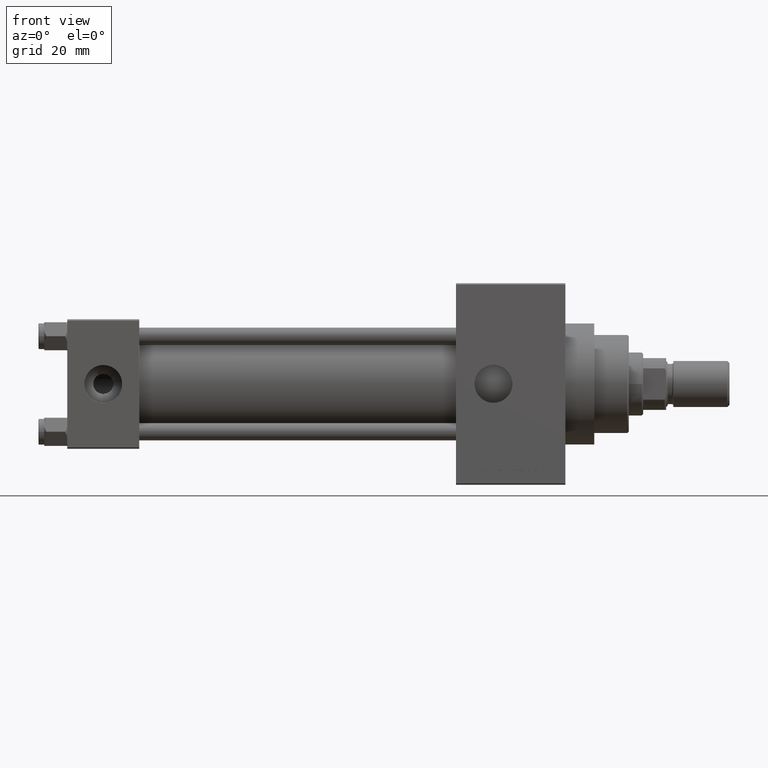
[diagram: clean part render]
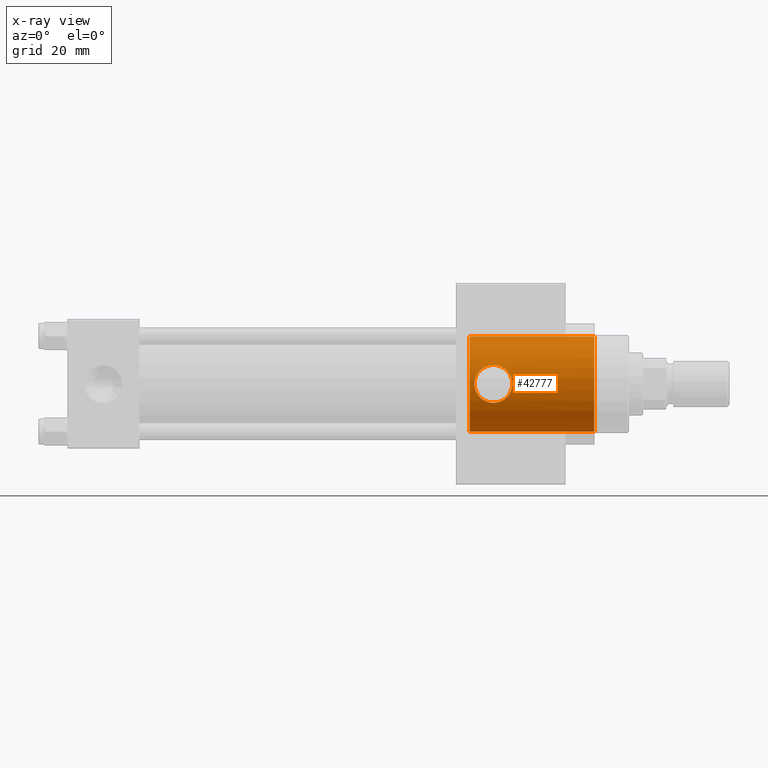
[diagram: x-ray — body ghosted, one internal face saturated and labeled with its STEP entity id]
A machine part, front view, then the same camera in x-ray: the body is ghosted and one INTERNAL B-rep face — a face not visible from any outside direction — is saturated and labeled: STEP entity #42777.
In plain terms, the highlighted cylindrical surface (partial cylindrical patch) has radius 16.5 mm, axis along (1, 0, 0).
Its self-contained STEP definition (entity closure, byte-faithful):
#26 = EDGE_LOOP ( 'NONE', ( #21347, #21054 ) ) ;
#193 = CARTESIAN_POINT ( 'NONE',  ( 142.1039559431533235, -16.23908422823408060, 2.929062552190930369 ) ) ;
#248 = CARTESIAN_POINT ( 'NONE',  ( 150.9212802831997919, -15.40951052421081435, 5.899896746572040662 ) ) ;
#592 = CARTESIAN_POINT ( 'NONE',  ( 139.7400000000000375, 2.020667218593133100E-15, 16.50000000000000000 ) ) ;
#733 = CARTESIAN_POINT ( 'NONE',  ( 148.0000000000000284, -15.13121277360145456, -6.580000000000014282 ) ) ;
#908 = CARTESIAN_POINT ( 'NONE',  ( 143.0437944101236951, -15.91962631954779717, -4.349073433710476166 ) ) ;
#927 = EDGE_CURVE ( 'NONE', #21059, #44335, #8832, .T. ) ;
#1185 = CARTESIAN_POINT ( 'NONE',  ( 148.8648144702257810, -15.15436943593550367, 6.526532836328776455 ) ) ;
#3271 = EDGE_CURVE ( 'NONE', #40395, #34363, #43614, .T. ) ;
#3330 = CARTESIAN_POINT ( 'NONE',  ( 147.5672578691196577, -15.13585148006111147, 6.569364365636764624 ) ) ;
#3566 = CARTESIAN_POINT ( 'NONE',  ( 148.0000000000000284, -15.13121277360145278, 6.580000000000016058 ) ) ;
#3813 = EDGE_CURVE ( 'NONE', #31132, #34363, #6127, .T. ) ;
#3814 = CARTESIAN_POINT ( 'NONE',  ( 141.4644179552915091, -16.48214899759540586, 0.8773583784808463015 ) ) ;
#3870 = CARTESIAN_POINT ( 'NONE',  ( 149.7162102700572461, -15.22683439812354500, -6.355960835349375948 ) ) ;
#4044 = CARTESIAN_POINT ( 'NONE',  ( 145.0618240303593893, -15.40879718763534889, -5.903497922217332494 ) ) ;
#4097 = CARTESIAN_POINT ( 'NONE',  ( 150.1351699272051121, -15.27614891417649368, 6.238637803414834870 ) ) ;
#4280 = CARTESIAN_POINT ( 'NONE',  ( 147.1225844535236433, -15.15075783367943174, -6.535529523814318509 ) ) ;
#4411 = EDGE_LOOP ( 'NONE', ( #37408, #15615, #24277, #29292 ) ) ;
#4586 = CARTESIAN_POINT ( 'NONE',  ( 153.2250317467632499, -16.00636203242128275, -4.022567752864862456 ) ) ;
#4815 = CARTESIAN_POINT ( 'NONE',  ( 152.9497087414562770, -15.91760481765424906, 4.356403647550576963 ) ) ;
#5293 = VECTOR ( 'NONE', #14280, 1000.000000000000000 ) ;
#5656 = CARTESIAN_POINT ( 'NONE',  ( 148.0000000000000284, -15.13121277360145278, 6.580000000000016058 ) ) ;
#6127 = CIRCLE ( 'NONE', #21496, 16.50000000000000000 ) ;
#6756 = DIRECTION ( 'NONE',  ( 1.000000000000000000, 0.000000000000000000, 0.000000000000000000 ) ) ;
#7184 = CARTESIAN_POINT ( 'NONE',  ( 146.2767826809346730, -15.22310035774496484, 6.365208763323286334 ) ) ;
#7420 = CARTESIAN_POINT ( 'NONE',  ( 143.0438847694137792, -15.91956650262382666, 4.349411674909243963 ) ) ;
#7516 = CARTESIAN_POINT ( 'NONE',  ( 139.7400000000000375, 0.000000000000000000, -16.50000000000000000 ) ) ;
#7722 = CARTESIAN_POINT ( 'NONE',  ( 149.5064260814269801, -15.20455203064717686, -6.408878950244529804 ) ) ;
#7900 = CARTESIAN_POINT ( 'NONE',  ( 141.6334388571907255, -16.41586083349134029, -1.718805082160337561 ) ) ;
#8035 = DIRECTION ( 'NONE',  ( 0.000000000000000000, 0.000000000000000000, -1.000000000000000000 ) ) ;
#8270 = DIRECTION ( 'NONE',  ( 1.000000000000000000, -0.000000000000000000, -0.000000000000000000 ) ) ;
#8372 = CARTESIAN_POINT ( 'NONE',  ( 141.4620471739781351, -16.48308870554038563, -0.8617218462485672914 ) ) ;
#8430 = CARTESIAN_POINT ( 'NONE',  ( 153.9069801896981744, -16.24261528062370985, -2.930445673899471526 ) ) ;
#8661 = CARTESIAN_POINT ( 'NONE',  ( 154.3548460819084767, -16.41140537151212797, -1.720283642777893807 ) ) ;
#8832 = B_SPLINE_CURVE_WITH_KNOTS ( 'NONE', 3,
 ( #3566, #40383, #3330, #32684, #36060, #7184, #47620, #21880, #14672, #29327, #44002, #11051, #25715, #7420, #21171, #35814, #26658, #193, #14896, #22121, #33872, #3814, #30497, #45175, #8372, #7900, #11997, #12238, #44936, #19220, #34096, #33396, #908, #33629, #22364, #15599, #23066, #25951, #4044, #18971, #26425, #4280, #36766, #41333 ),
 .UNSPECIFIED., .F., .F.,
 ( 4, 2, 2, 2, 2, 2, 2, 2, 2, 2, 2, 2, 2, 2, 2, 2, 2, 2, 2, 2, 2, 4 ),
 ( 0.02078956491795420566, 0.02143865439125720862, 0.02208774386456021505, 0.02338592281116630422, 0.02403501228446931065, 0.02468410175777231708, 0.02598228070437832993, 0.02728045965098434625, 0.02792954912428733186, 0.02857863859759031747, 0.02987681754419625746, 0.03117499649080219745, 0.03247317543740813744, 0.03377135438401408091, 0.03442044385731705264, 0.03506953333062001743, 0.03636771227722596089, 0.03701680175052896038, 0.03766589122383195987, 0.03896407017043788945, 0.04026224911704381904, 0.04156042806364975556 ),
 .UNSPECIFIED. ) ;
#9239 = VERTEX_POINT ( 'NONE', #592 ) ;
#11051 = CARTESIAN_POINT ( 'NONE',  ( 143.9807304781080006, -15.65215798738097952, 5.227153856479611171 ) ) ;
#11085 = CARTESIAN_POINT ( 'NONE',  ( 183.0000000000000284, 2.020667218593133100E-15, 16.50000000000000000 ) ) ;
#11336 = CARTESIAN_POINT ( 'NONE',  ( 151.4859657317063864, -15.52661439514565167, 5.584815751443769294 ) ) ;
#11825 = CARTESIAN_POINT ( 'NONE',  ( 154.2277622722571664, -16.36261533078069164, -2.135046045547257521 ) ) ;
#11997 = CARTESIAN_POINT ( 'NONE',  ( 141.7607862772776173, -16.36636496367313853, -2.133785395076407632 ) ) ;
#12238 = CARTESIAN_POINT ( 'NONE',  ( 142.0084922471852167, -16.27408657079178056, -2.728432122203517274 ) ) ;
#12297 = CARTESIAN_POINT ( 'NONE',  ( 149.0817350575626676, -15.16832949578266643, 6.494148522642652743 ) ) ;
#12609 = LINE ( 'NONE', #38085, #24432 ) ;
#12710 = EDGE_CURVE ( 'NONE', #44335, #21059, #19050, .T. ) ;
#14280 = DIRECTION ( 'NONE',  ( 1.000000000000000000, -0.000000000000000000, -0.000000000000000000 ) ) ;
#14672 = CARTESIAN_POINT ( 'NONE',  ( 145.0728633227410285, -15.41062330090501398, 5.896992992228506481 ) ) ;
#14896 = CARTESIAN_POINT ( 'NONE',  ( 142.0103247299445002, -16.27341039072888762, 2.732504077175528234 ) ) ;
#14936 = CARTESIAN_POINT ( 'NONE',  ( 183.0000000000000284, 0.000000000000000000, -16.50000000000000000 ) ) ;
#14952 = CARTESIAN_POINT ( 'NONE',  ( 154.5260053312742627, -16.47852996647750956, 0.8692522333500367626 ) ) ;
#15034 = DIRECTION ( 'NONE',  ( 1.000000000000000000, -0.000000000000000000, -0.000000000000000000 ) ) ;
#15429 = CARTESIAN_POINT ( 'NONE',  ( 148.4397603472147011, -15.13121277360145278, -6.580000000000012506 ) ) ;
#15599 = CARTESIAN_POINT ( 'NONE',  ( 143.9861868278036070, -15.65371965244644414, -5.218375791872191805 ) ) ;
#15615 = ORIENTED_EDGE ( 'NONE', *, *, #42935, .T. ) ;
#16731 = AXIS2_PLACEMENT_3D ( 'NONE', #26335, #15034, #8035 ) ;
#17708 = CARTESIAN_POINT ( 'NONE',  ( 139.7400000000000375, 0.000000000000000000, 0.000000000000000000 ) ) ;
#18304 = DIRECTION ( 'NONE',  ( 0.000000000000000000, 0.000000000000000000, -1.000000000000000000 ) ) ;
#18561 = CARTESIAN_POINT ( 'NONE',  ( 154.4087383794896766, -16.43240648733736009, -1.507201823210728708 ) ) ;
#18790 = CARTESIAN_POINT ( 'NONE',  ( 154.1545588368718711, -16.33481951307493318, -2.337453149428515786 ) ) ;
#18971 = CARTESIAN_POINT ( 'NONE',  ( 145.8613789780410741, -15.27651310399955165, -6.237825412003239478 ) ) ;
#19025 = CARTESIAN_POINT ( 'NONE',  ( 152.0188320299910743, -15.65200948303234796, 5.227646253864151937 ) ) ;
#19050 = B_SPLINE_CURVE_WITH_KNOTS ( 'NONE', 3,
 ( #733, #15429, #40915, #7722, #3870, #40682, #22877, #41630, #36828, #22418, #26959, #45231, #44989, #22651, #4586, #26479, #8430, #18790, #11825, #8661, #18561, #26251, #33220, #37292, #30094, #14952, #37767, #23121, #44760, #41388, #41150, #37059, #4815, #33448, #19025, #11336, #33688, #248, #29610, #4097, #44287, #12297, #1185, #44538, #26013, #19271 ),
 .UNSPECIFIED., .F., .F.,
 ( 4, 2, 2, 2, 2, 2, 2, 2, 2, 2, 2, 2, 2, 2, 2, 2, 2, 2, 2, 2, 2, 2, 4 ),
 ( 0.000000000000000000, 0.001299347807372126578, 0.001949021711058230091, 0.002598695614744333821, 0.003898043422116464953, 0.004547717325802496692, 0.005197391229488527130, 0.006496739036860650456, 0.007796086844232772047, 0.008445760747918834577, 0.009095434651604894505, 0.01039478245897701436, 0.01104445636266307776, 0.01169413026634913769, 0.01299347807372125928, 0.01429282588109338087, 0.01559217368846550419, 0.01689152149583762405, 0.01754119539952368051, 0.01819086930320974044, 0.01949021711058193315, 0.02013989101426806941, 0.02078956491795420566 ),
 .UNSPECIFIED. ) ;
#19220 = CARTESIAN_POINT ( 'NONE',  ( 142.3046072488310756, -16.16731373912638148, -3.302327227358423656 ) ) ;
#19271 = CARTESIAN_POINT ( 'NONE',  ( 148.0000000000000284, -15.13121277360145278, 6.580000000000016058 ) ) ;
#21054 = ORIENTED_EDGE ( 'NONE', *, *, #927, .T. ) ;
#21059 = VERTEX_POINT ( 'NONE', #5656 ) ;
#21171 = CARTESIAN_POINT ( 'NONE',  ( 142.7742737172256966, -16.00662470145048744, 4.021104841631734317 ) ) ;
#21347 = ORIENTED_EDGE ( 'NONE', *, *, #12710, .T. ) ;
#21496 = AXIS2_PLACEMENT_3D ( 'NONE', #36813, #6756, #18304 ) ;
#21880 = CARTESIAN_POINT ( 'NONE',  ( 145.2690828014978308, -15.37442948406652121, 5.990397416240471173 ) ) ;
#22121 = CARTESIAN_POINT ( 'NONE',  ( 141.7615188125124348, -16.36607928442571946, 2.136189589747841122 ) ) ;
#22364 = CARTESIAN_POINT ( 'NONE',  ( 143.6557844884556516, -15.74167879188345687, -4.946709378541671143 ) ) ;
#22418 = CARTESIAN_POINT ( 'NONE',  ( 151.8422313747836085, -15.61045951566061163, -5.345983015487672851 ) ) ;
#22651 = CARTESIAN_POINT ( 'NONE',  ( 152.9531807260740095, -15.91870913537849219, -4.352308027976948601 ) ) ;
#22877 = CARTESIAN_POINT ( 'NONE',  ( 150.3368436404141733, -15.30934634399819316, -6.154824634276170769 ) ) ;
#23066 = CARTESIAN_POINT ( 'NONE',  ( 144.1570379981040162, -15.61065458758650237, -5.345392095018794087 ) ) ;
#23121 = CARTESIAN_POINT ( 'NONE',  ( 154.3658105569158749, -16.41557174924396278, 1.720484255628318193 ) ) ;
#24277 = ORIENTED_EDGE ( 'NONE', *, *, #3813, .T. ) ;
#24432 = VECTOR ( 'NONE', #8270, 1000.000000000000000 ) ;
#25399 = CARTESIAN_POINT ( 'NONE',  ( 148.0000000000000284, -15.13121277360145456, -6.580000000000014282 ) ) ;
#25715 = CARTESIAN_POINT ( 'NONE',  ( 143.6506155284152442, -15.74124088927798049, 4.956139103679623403 ) ) ;
#25951 = CARTESIAN_POINT ( 'NONE',  ( 144.6864994234287281, -15.48596799979300620, -5.700684899122766325 ) ) ;
#26013 = CARTESIAN_POINT ( 'NONE',  ( 148.2164626310618871, -15.13121277360145811, 6.580000000000016946 ) ) ;
#26107 = CYLINDRICAL_SURFACE ( 'NONE', #16731, 16.50000000000000000 ) ;
#26251 = CARTESIAN_POINT ( 'NONE',  ( 154.5369143499477502, -16.48267789565536745, -0.8682687325834133052 ) ) ;
#26335 = CARTESIAN_POINT ( 'NONE',  ( 139.7400000000000375, 0.000000000000000000, 0.000000000000000000 ) ) ;
#26425 = CARTESIAN_POINT ( 'NONE',  ( 146.2756825394560565, -15.22330041739756545, -6.364725720179173152 ) ) ;
#26479 = CARTESIAN_POINT ( 'NONE',  ( 153.7049275730288400, -16.16938055003216945, -3.306933544473975584 ) ) ;
#26658 = CARTESIAN_POINT ( 'NONE',  ( 142.3080163297186118, -16.16611267912461614, 3.308181502302199206 ) ) ;
#26959 = CARTESIAN_POINT ( 'NONE',  ( 152.0155953641319684, -15.65417886246120815, -5.216995378072931011 ) ) ;
#29292 = ORIENTED_EDGE ( 'NONE', *, *, #3271, .F. ) ;
#29327 = CARTESIAN_POINT ( 'NONE',  ( 144.6940296043648289, -15.48704689900104725, 5.693260508788507757 ) ) ;
#29610 = CARTESIAN_POINT ( 'NONE',  ( 150.7277559956703215, -15.37388358644063935, 5.991788989370728125 ) ) ;
#30094 = CARTESIAN_POINT ( 'NONE',  ( 154.5693563963831423, -16.49574635277159373, 0.4334761427161618608 ) ) ;
#30497 = CARTESIAN_POINT ( 'NONE',  ( 141.4201909808367361, -16.49992383916338667, 0.4364344349844263560 ) ) ;
#31132 = VERTEX_POINT ( 'NONE', #11085 ) ;
#32684 = CARTESIAN_POINT ( 'NONE',  ( 147.1338894043951768, -15.15443439520090330, 6.526382333001802927 ) ) ;
#33220 = CARTESIAN_POINT ( 'NONE',  ( 154.5797754257114320, -16.49991044250579009, -0.4380009678969691289 ) ) ;
#33396 = CARTESIAN_POINT ( 'NONE',  ( 142.7739693338086511, -16.00670877726529895, -4.020959533168225519 ) ) ;
#33448 = CARTESIAN_POINT ( 'NONE',  ( 152.3466734307965567, -15.74052401985886362, 4.958255686392939232 ) ) ;
#33629 = CARTESIAN_POINT ( 'NONE',  ( 143.4961202637415454, -15.78663247038169715, -4.801767457567236441 ) ) ;
#33688 = CARTESIAN_POINT ( 'NONE',  ( 151.3003347595243611, -15.48584339413507038, 5.696529696955717093 ) ) ;
#33872 = CARTESIAN_POINT ( 'NONE',  ( 141.6355686591317351, -16.41503546168713612, 1.725573555308425489 ) ) ;
#34096 = CARTESIAN_POINT ( 'NONE',  ( 142.4163935120344036, -16.12816461199180296, -3.487910063402599015 ) ) ;
#34363 = VERTEX_POINT ( 'NONE', #14936 ) ;
#35814 = CARTESIAN_POINT ( 'NONE',  ( 142.4184552035378886, -16.12745476206849204, 3.491136278857380759 ) ) ;
#36060 = CARTESIAN_POINT ( 'NONE',  ( 146.9160330086837405, -15.16850391705046341, 6.493739731009430471 ) ) ;
#36766 = CARTESIAN_POINT ( 'NONE',  ( 147.5606352501869196, -15.13121277360145633, -6.580000000000015170 ) ) ;
#36813 = CARTESIAN_POINT ( 'NONE',  ( 183.0000000000000284, 0.000000000000000000, 0.000000000000000000 ) ) ;
#36828 = CARTESIAN_POINT ( 'NONE',  ( 151.3085270693855193, -15.48484319519206309, -5.703819245747587807 ) ) ;
#37059 = CARTESIAN_POINT ( 'NONE',  ( 153.2252096198712934, -16.00644752007863403, 4.021902003618694543 ) ) ;
#37292 = CARTESIAN_POINT ( 'NONE',  ( 154.5801109797046706, -16.50004425735604130, 0.2139202420057867982 ) ) ;
#37358 = AXIS2_PLACEMENT_3D ( 'NONE', #17708, #43433, #40072 ) ;
#37408 = ORIENTED_EDGE ( 'NONE', *, *, #40035, .F. ) ;
#37767 = CARTESIAN_POINT ( 'NONE',  ( 154.4936693983396481, -16.46571605509280545, 1.084186457750401011 ) ) ;
#38085 = CARTESIAN_POINT ( 'NONE',  ( 139.7400000000000375, 2.020667218593133100E-15, 16.50000000000000000 ) ) ;
#38873 = CIRCLE ( 'NONE', #37358, 16.50000000000000000 ) ;
#39063 = CARTESIAN_POINT ( 'NONE',  ( 139.7400000000000375, 0.000000000000000000, -16.50000000000000000 ) ) ;
#40035 = EDGE_CURVE ( 'NONE', #9239, #40395, #38873, .T. ) ;
#40072 = DIRECTION ( 'NONE',  ( 0.000000000000000000, 0.000000000000000000, -1.000000000000000000 ) ) ;
#40383 = CARTESIAN_POINT ( 'NONE',  ( 147.7837320933032288, -15.13121277360145633, 6.580000000000016058 ) ) ;
#40395 = VERTEX_POINT ( 'NONE', #39063 ) ;
#40682 = CARTESIAN_POINT ( 'NONE',  ( 150.1318010609375335, -15.27925665273813927, -6.228887546595366587 ) ) ;
#40768 = FACE_BOUND ( 'NONE', #26, .T. ) ;
#40915 = CARTESIAN_POINT ( 'NONE',  ( 148.8711411545349108, -15.15039334692470341, -6.536368168917475074 ) ) ;
#41000 = FACE_OUTER_BOUND ( 'NONE', #4411, .T. ) ;
#41150 = CARTESIAN_POINT ( 'NONE',  ( 153.7009324042663536, -16.16799854402052361, 3.313288550714180936 ) ) ;
#41333 = CARTESIAN_POINT ( 'NONE',  ( 148.0000000000000284, -15.13121277360145456, -6.580000000000014282 ) ) ;
#41388 = CARTESIAN_POINT ( 'NONE',  ( 153.9044860275097051, -16.24168627842799495, 2.936425463161402405 ) ) ;
#41630 = CARTESIAN_POINT ( 'NONE',  ( 150.9325498729253923, -15.40779146666331023, -5.906079000195559203 ) ) ;
#42777 = ADVANCED_FACE ( 'NONE', ( #40768, #41000 ), #26107, .F. ) ;
#42935 = EDGE_CURVE ( 'NONE', #9239, #31132, #12609, .T. ) ;
#43433 = DIRECTION ( 'NONE',  ( 1.000000000000000000, 0.000000000000000000, 0.000000000000000000 ) ) ;
#43614 = LINE ( 'NONE', #7516, #5293 ) ;
#44002 = CARTESIAN_POINT ( 'NONE',  ( 144.5110772590388137, -15.52728767156316181, 5.582932414048517700 ) ) ;
#44287 = CARTESIAN_POINT ( 'NONE',  ( 149.7242185682246429, -15.22315359912302846, 6.365087069679066900 ) ) ;
#44335 = VERTEX_POINT ( 'NONE', #25399 ) ;
#44538 = CARTESIAN_POINT ( 'NONE',  ( 148.4327185641294875, -15.13585987939391941, 6.569344683897123893 ) ) ;
#44760 = CARTESIAN_POINT ( 'NONE',  ( 154.2396054961518530, -16.36649304724221210, 2.133746236587432676 ) ) ;
#44936 = CARTESIAN_POINT ( 'NONE',  ( 142.1006880801393208, -16.24027142867651818, -2.922495950178623847 ) ) ;
#44989 = CARTESIAN_POINT ( 'NONE',  ( 152.5029775434219061, -15.78638122130811716, -4.802565914417463944 ) ) ;
#45175 = CARTESIAN_POINT ( 'NONE',  ( 141.4198102875361087, -16.50007565502492923, -0.4306565832376140213 ) ) ;
#45231 = CARTESIAN_POINT ( 'NONE',  ( 152.3455699946030109, -15.74205476764336709, -4.945509915598016448 ) ) ;
#47620 = CARTESIAN_POINT ( 'NONE',  ( 145.8653431066457813, -15.27601560990891549, 6.238999899499654056 ) ) ;